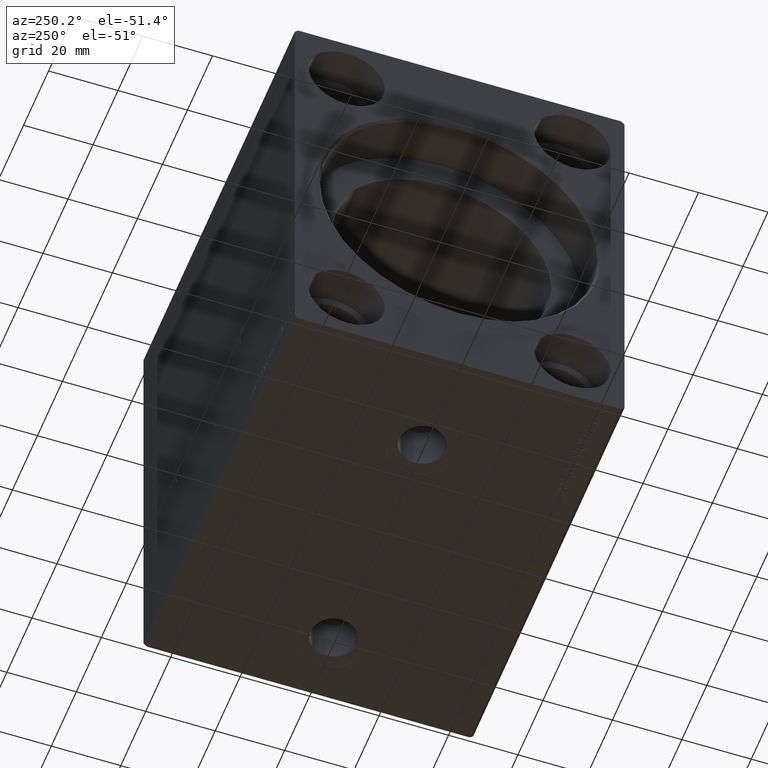
[diagram: clean part render]
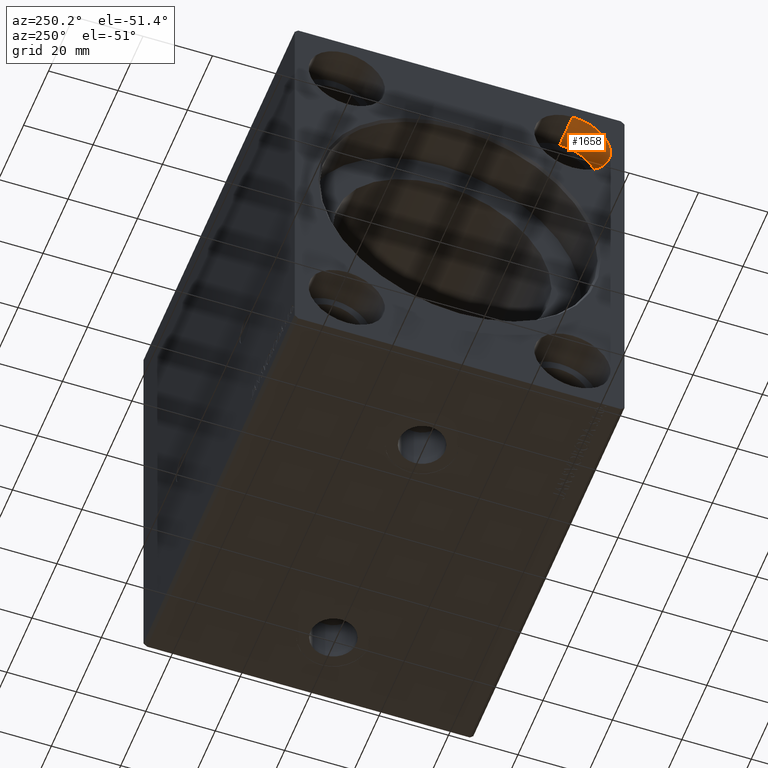
[diagram: same view with one face highlighted and labeled with its STEP entity id]
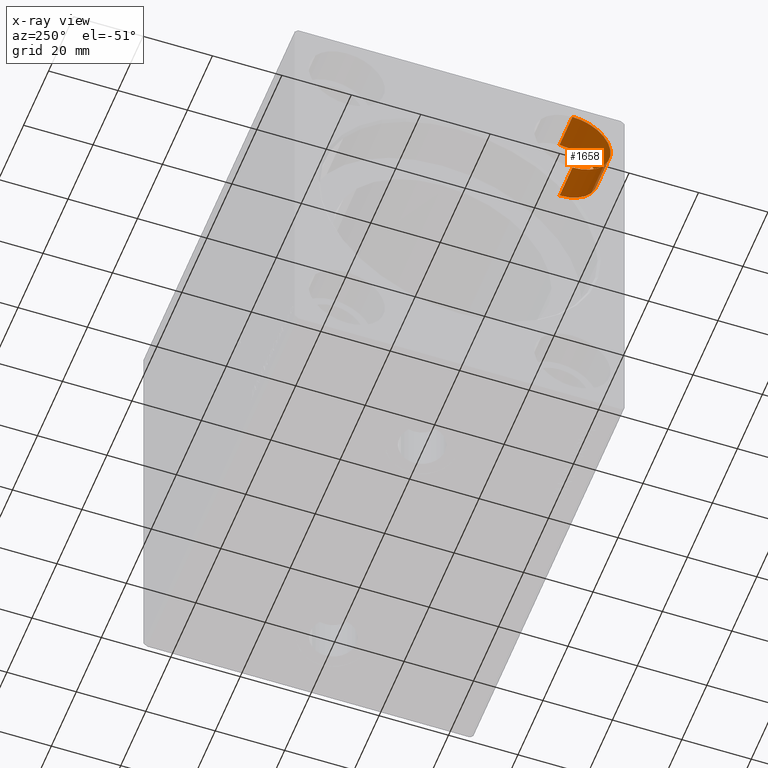
[diagram: x-ray of the same camera — body ghosted, the highlighted face saturated]
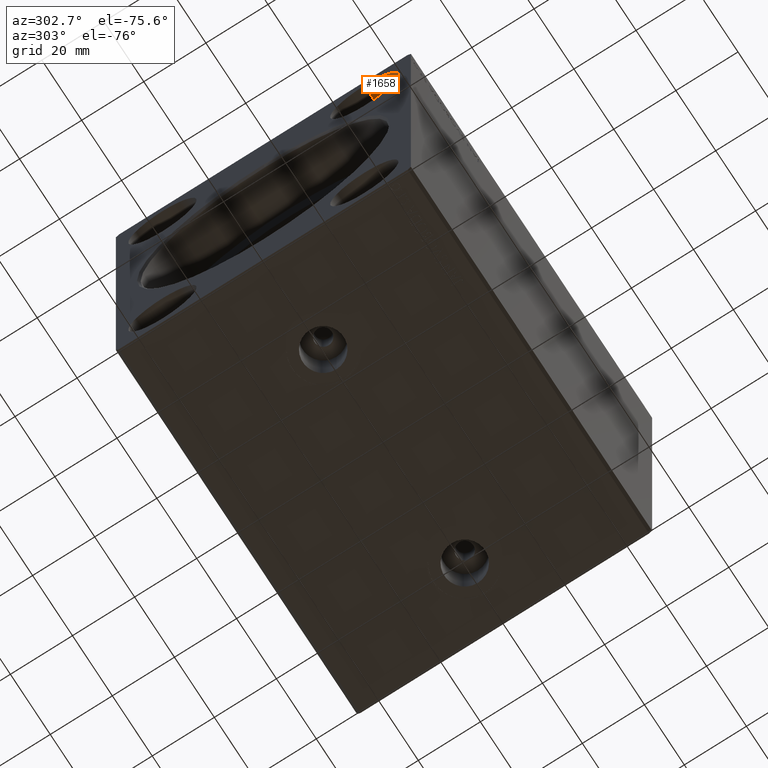
[diagram: same view with one face highlighted and labeled with its STEP entity id]
A machine part, auxiliary view. The second image highlights one B-rep face of the part: STEP entity #1658.
The next image is the same camera in x-ray: the body ghosted, the highlighted face saturated — about 0% of this face is hidden behind the body in this view.
A second angle (auxiliary view) of the same face is appended — the face is thin or edge-on in the first view.
In plain terms, the highlighted cylindrical surface (partial cylindrical patch) has radius 11 mm, axis along (-1, -0, -0).
Its self-contained STEP definition (entity closure, byte-faithful):
#203 = DIRECTION ( 'NONE',  ( -1.000000000000000000, -0.000000000000000000, -0.000000000000000000 ) ) ;
#530 = DIRECTION ( 'NONE',  ( -1.000000000000000000, 0.000000000000000000, 0.000000000000000000 ) ) ;
#1041 = EDGE_LOOP ( 'NONE', ( #22192, #29615, #10121, #5522 ) ) ;
#1658 = ADVANCED_FACE ( 'NONE', ( #9945 ), #35532, .F. ) ;
#5522 = ORIENTED_EDGE ( 'NONE', *, *, #33960, .F. ) ;
#6753 = DIRECTION ( 'NONE',  ( 0.000000000000000000, 0.000000000000000000, 1.000000000000000000 ) ) ;
#6988 = EDGE_CURVE ( 'NONE', #35058, #14991, #17124, .T. ) ;
#7864 = VECTOR ( 'NONE', #203, 1000.000000000000000 ) ;
#8439 = CARTESIAN_POINT ( 'NONE',  ( 0.000000000000000000, -32.50000000000000000, 58.50000000000000000 ) ) ;
#9945 = FACE_OUTER_BOUND ( 'NONE', #1041, .T. ) ;
#10121 = ORIENTED_EDGE ( 'NONE', *, *, #6988, .T. ) ;
#12163 = VECTOR ( 'NONE', #35147, 1000.000000000000000 ) ;
#12543 = DIRECTION ( 'NONE',  ( -1.000000000000000000, -0.000000000000000000, -0.000000000000000000 ) ) ;
#13178 = CARTESIAN_POINT ( 'NONE',  ( 0.000000000000000000, -32.50000000000000000, 47.50000000000000000 ) ) ;
#13840 = CARTESIAN_POINT ( 'NONE',  ( 10.33000000000000007, -32.50000000000000000, 47.50000000000000000 ) ) ;
#14991 = VERTEX_POINT ( 'NONE', #8439 ) ;
#16403 = DIRECTION ( 'NONE',  ( -1.000000000000000000, 0.000000000000000000, 0.000000000000000000 ) ) ;
#17124 = CIRCLE ( 'NONE', #39808, 10.99999999999999645 ) ;
#18531 = CARTESIAN_POINT ( 'NONE',  ( 10.33000000000000007, -32.50000000000000000, 58.50000000000000000 ) ) ;
#18797 = CIRCLE ( 'NONE', #24279, 10.99999999999999645 ) ;
#19742 = LINE ( 'NONE', #26396, #7864 ) ;
#19791 = EDGE_CURVE ( 'NONE', #33019, #22852, #18797, .T. ) ;
#22192 = ORIENTED_EDGE ( 'NONE', *, *, #19791, .F. ) ;
#22259 = LINE ( 'NONE', #38787, #12163 ) ;
#22852 = VERTEX_POINT ( 'NONE', #18531 ) ;
#24279 = AXIS2_PLACEMENT_3D ( 'NONE', #13840, #530, #6753 ) ;
#26061 = EDGE_CURVE ( 'NONE', #33019, #35058, #19742, .T. ) ;
#26396 = CARTESIAN_POINT ( 'NONE',  ( 10.33000000000000007, -32.50000000000000000, 36.50000000000000711 ) ) ;
#26489 = DIRECTION ( 'NONE',  ( 0.000000000000000000, 0.000000000000000000, 1.000000000000000000 ) ) ;
#26737 = AXIS2_PLACEMENT_3D ( 'NONE', #32103, #12543, #32529 ) ;
#29615 = ORIENTED_EDGE ( 'NONE', *, *, #26061, .T. ) ;
#32103 = CARTESIAN_POINT ( 'NONE',  ( 10.33000000000000007, -32.50000000000000000, 47.50000000000000000 ) ) ;
#32529 = DIRECTION ( 'NONE',  ( 0.000000000000000000, 0.000000000000000000, 1.000000000000000000 ) ) ;
#33019 = VERTEX_POINT ( 'NONE', #34669 ) ;
#33960 = EDGE_CURVE ( 'NONE', #22852, #14991, #22259, .T. ) ;
#34669 = CARTESIAN_POINT ( 'NONE',  ( 10.33000000000000007, -32.50000000000000000, 36.50000000000000711 ) ) ;
#35058 = VERTEX_POINT ( 'NONE', #40377 ) ;
#35147 = DIRECTION ( 'NONE',  ( -1.000000000000000000, -0.000000000000000000, -0.000000000000000000 ) ) ;
#35532 = CYLINDRICAL_SURFACE ( 'NONE', #26737, 10.99999999999999645 ) ;
#38787 = CARTESIAN_POINT ( 'NONE',  ( 10.33000000000000007, -32.50000000000000000, 58.50000000000000000 ) ) ;
#39808 = AXIS2_PLACEMENT_3D ( 'NONE', #13178, #16403, #26489 ) ;
#40377 = CARTESIAN_POINT ( 'NONE',  ( 0.000000000000000000, -32.50000000000000000, 36.50000000000000711 ) ) ;